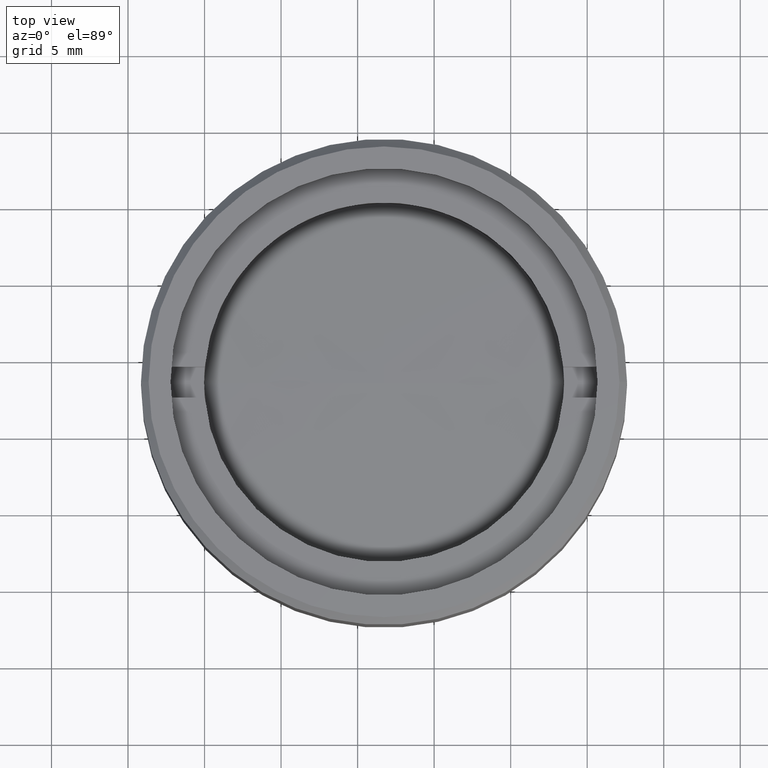
[diagram: clean part render]
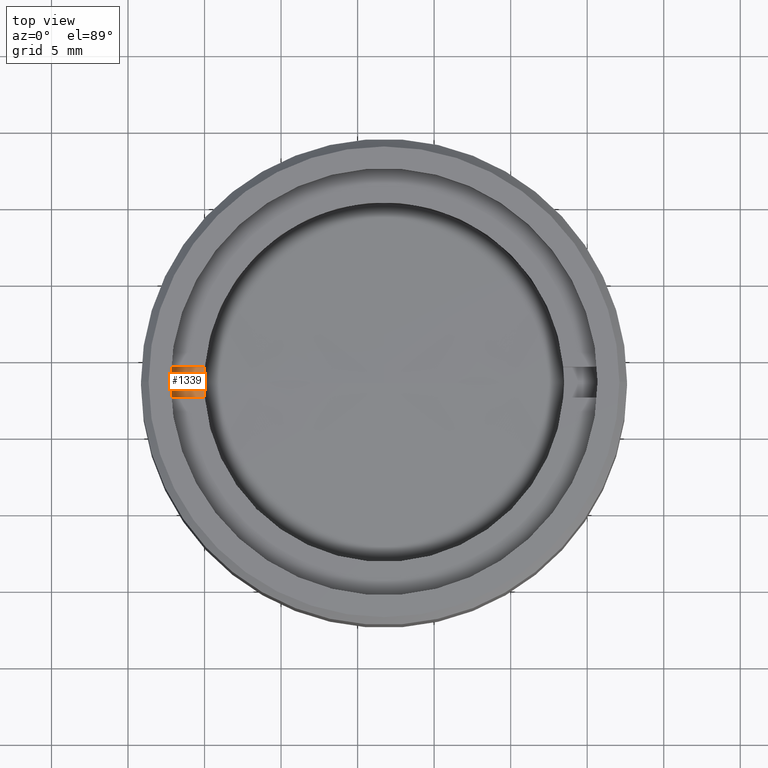
[diagram: same view with one face highlighted and labeled with its STEP entity id]
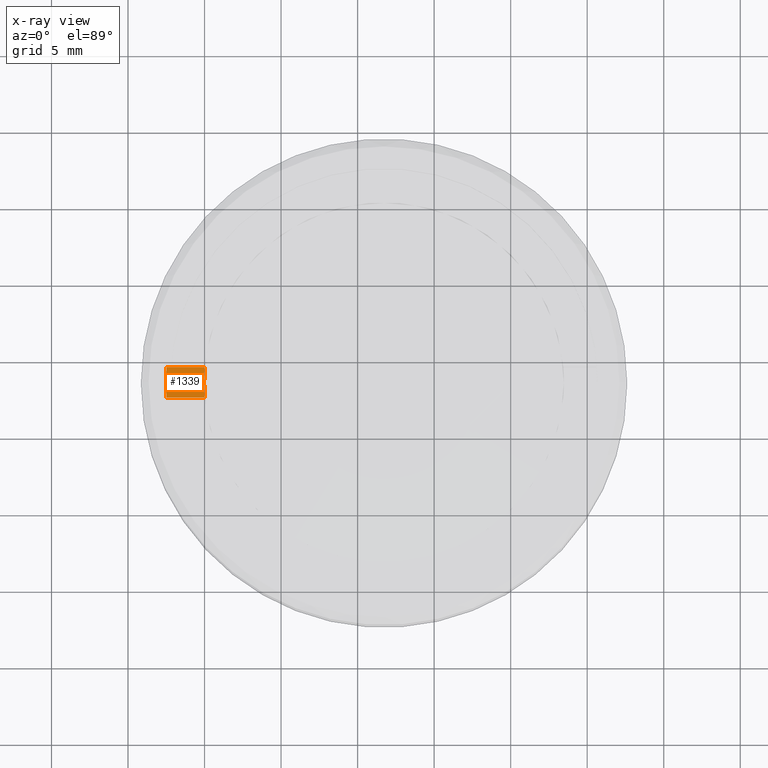
[diagram: x-ray of the same camera — body ghosted, the highlighted face saturated]
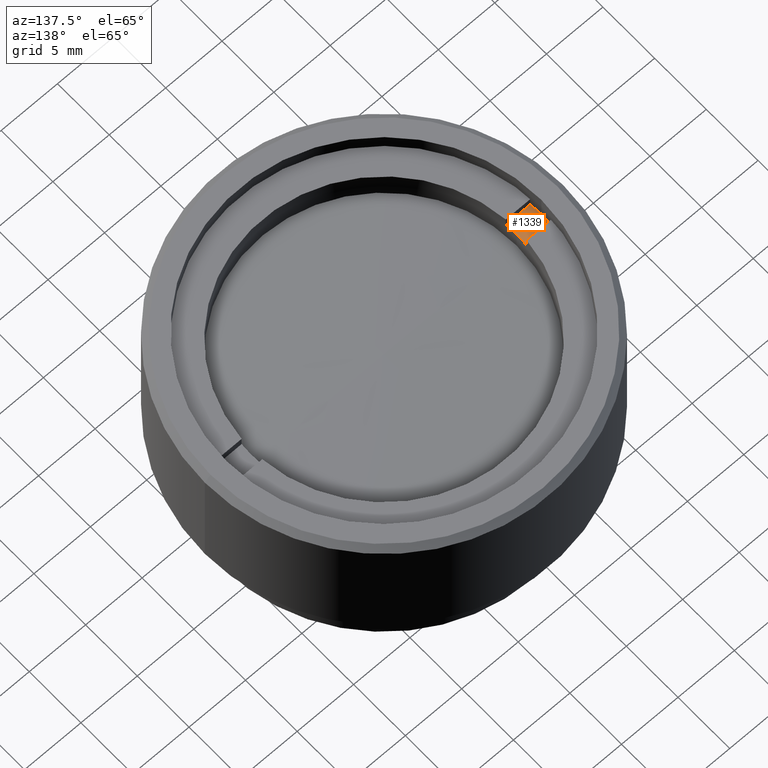
[diagram: same view with one face highlighted and labeled with its STEP entity id]
A machine part, top view. The second image highlights one B-rep face of the part: STEP entity #1339.
The next image is the same camera in x-ray: the body ghosted, the highlighted face saturated — about 0% of this face is hidden behind the body in this view.
A second angle (auxiliary view) of the same face is appended — the face is thin or edge-on in the first view.
In plain terms, the highlighted planar face has unit normal (0, 0, 1).
Its self-contained STEP definition (entity closure, byte-faithful):
#5 = DIRECTION ( 'NONE',  ( 1.000000000000000000, 0.000000000000000000, 0.000000000000000000 ) ) ;
#76 = EDGE_CURVE ( 'NONE', #1141, #1296, #1055, .T. ) ;
#114 = DIRECTION ( 'NONE',  ( -0.000000000000000000, 0.000000000000000000, 1.000000000000000000 ) ) ;
#135 = ORIENTED_EDGE ( 'NONE', *, *, #359, .F. ) ;
#146 = CIRCLE ( 'NONE', #952, 14.25000000000000000 ) ;
#147 = ORIENTED_EDGE ( 'NONE', *, *, #899, .T. ) ;
#194 = CIRCLE ( 'NONE', #1169, 14.25000000000000000 ) ;
#195 = DIRECTION ( 'NONE',  ( 1.000000000000000000, 0.000000000000000000, 0.000000000000000000 ) ) ;
#267 = CARTESIAN_POINT ( 'NONE',  ( -14.21486897582949993, -1.000000000000000000, 1.700000000000000178 ) ) ;
#284 = DIRECTION ( 'NONE',  ( 1.000000000000000000, 0.000000000000000000, 0.000000000000000000 ) ) ;
#312 = VERTEX_POINT ( 'NONE', #753 ) ;
#340 = FACE_OUTER_BOUND ( 'NONE', #505, .T. ) ;
#359 = EDGE_CURVE ( 'NONE', #1322, #1296, #543, .T. ) ;
#387 = CARTESIAN_POINT ( 'NONE',  ( -14.25000000000000000, 0.000000000000000000, 1.700000000000000178 ) ) ;
#436 = CARTESIAN_POINT ( 'NONE',  ( 0.000000000000000000, 0.000000000000000000, 1.700000000000000178 ) ) ;
#455 = EDGE_CURVE ( 'NONE', #312, #1322, #1065, .T. ) ;
#496 = EDGE_CURVE ( 'NONE', #312, #1190, #720, .T. ) ;
#505 = EDGE_LOOP ( 'NONE', ( #147, #939, #1597, #135, #1017, #971 ) ) ;
#528 = DIRECTION ( 'NONE',  ( 1.000000000000000000, 0.000000000000000000, 0.000000000000000000 ) ) ;
#541 = DIRECTION ( 'NONE',  ( -0.000000000000000000, 0.000000000000000000, 1.000000000000000000 ) ) ;
#543 = CIRCLE ( 'NONE', #1166, 11.75000000000000178 ) ;
#577 = CARTESIAN_POINT ( 'NONE',  ( -30.62185530834360492, 1.000000000000000000, 1.700000000000000178 ) ) ;
#617 = VERTEX_POINT ( 'NONE', #387 ) ;
#622 = VECTOR ( 'NONE', #5, 1000.000000000000000 ) ;
#720 = LINE ( 'NONE', #577, #1156 ) ;
#731 = CARTESIAN_POINT ( 'NONE',  ( 0.000000000000000000, 0.000000000000000000, 1.700000000000000178 ) ) ;
#753 = CARTESIAN_POINT ( 'NONE',  ( -11.70736947396809668, 1.000000000000000000, 1.700000000000000178 ) ) ;
#793 = CARTESIAN_POINT ( 'NONE',  ( -14.21486897582949993, 1.000000000000000000, 1.700000000000000178 ) ) ;
#802 = CARTESIAN_POINT ( 'NONE',  ( 0.000000000000000000, 0.000000000000000000, 1.700000000000000178 ) ) ;
#876 = CARTESIAN_POINT ( 'NONE',  ( -11.70736947396809668, -1.000000000000000000, 1.700000000000000178 ) ) ;
#899 = EDGE_CURVE ( 'NONE', #1190, #617, #194, .T. ) ;
#929 = CARTESIAN_POINT ( 'NONE',  ( 0.000000000000000000, 0.000000000000000000, 1.700000000000000178 ) ) ;
#939 = ORIENTED_EDGE ( 'NONE', *, *, #1093, .T. ) ;
#952 = AXIS2_PLACEMENT_3D ( 'NONE', #929, #114, #1306 ) ;
#964 = CARTESIAN_POINT ( 'NONE',  ( -30.62185530834360492, -1.000000000000000000, 1.700000000000000178 ) ) ;
#971 = ORIENTED_EDGE ( 'NONE', *, *, #496, .T. ) ;
#973 = DIRECTION ( 'NONE',  ( -0.000000000000000000, 0.000000000000000000, 1.000000000000000000 ) ) ;
#1001 = CARTESIAN_POINT ( 'NONE',  ( -11.75000000000000178, 0.000000000000000000, 1.700000000000000178 ) ) ;
#1017 = ORIENTED_EDGE ( 'NONE', *, *, #455, .F. ) ;
#1055 = LINE ( 'NONE', #964, #622 ) ;
#1065 = CIRCLE ( 'NONE', #1120, 11.75000000000000178 ) ;
#1093 = EDGE_CURVE ( 'NONE', #617, #1141, #146, .T. ) ;
#1112 = DIRECTION ( 'NONE',  ( -1.000000000000000000, -0.000000000000000000, -0.000000000000000000 ) ) ;
#1120 = AXIS2_PLACEMENT_3D ( 'NONE', #802, #1607, #528 ) ;
#1125 = AXIS2_PLACEMENT_3D ( 'NONE', #731, #1688, #195 ) ;
#1141 = VERTEX_POINT ( 'NONE', #267 ) ;
#1156 = VECTOR ( 'NONE', #1112, 1000.000000000000000 ) ;
#1166 = AXIS2_PLACEMENT_3D ( 'NONE', #1335, #541, #1470 ) ;
#1169 = AXIS2_PLACEMENT_3D ( 'NONE', #436, #973, #284 ) ;
#1190 = VERTEX_POINT ( 'NONE', #793 ) ;
#1296 = VERTEX_POINT ( 'NONE', #876 ) ;
#1306 = DIRECTION ( 'NONE',  ( 1.000000000000000000, 0.000000000000000000, 0.000000000000000000 ) ) ;
#1322 = VERTEX_POINT ( 'NONE', #1001 ) ;
#1335 = CARTESIAN_POINT ( 'NONE',  ( 0.000000000000000000, 0.000000000000000000, 1.700000000000000178 ) ) ;
#1339 = ADVANCED_FACE ( 'NONE', ( #340 ), #1396, .T. ) ;
#1396 = PLANE ( 'NONE',  #1125 ) ;
#1470 = DIRECTION ( 'NONE',  ( 1.000000000000000000, 0.000000000000000000, 0.000000000000000000 ) ) ;
#1597 = ORIENTED_EDGE ( 'NONE', *, *, #76, .T. ) ;
#1607 = DIRECTION ( 'NONE',  ( -0.000000000000000000, 0.000000000000000000, 1.000000000000000000 ) ) ;
#1688 = DIRECTION ( 'NONE',  ( -0.000000000000000000, 0.000000000000000000, 1.000000000000000000 ) ) ;